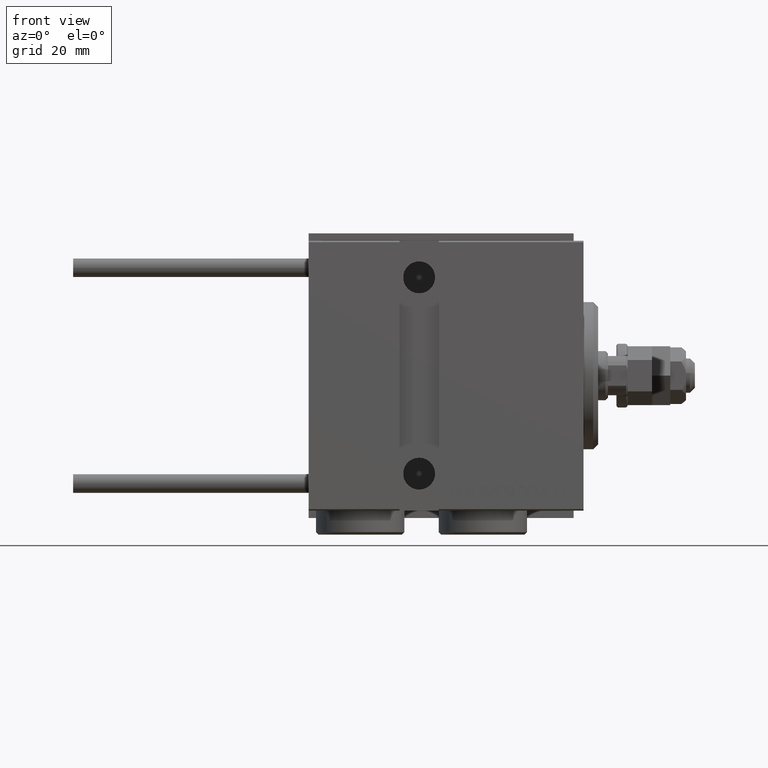
[diagram: clean part render]
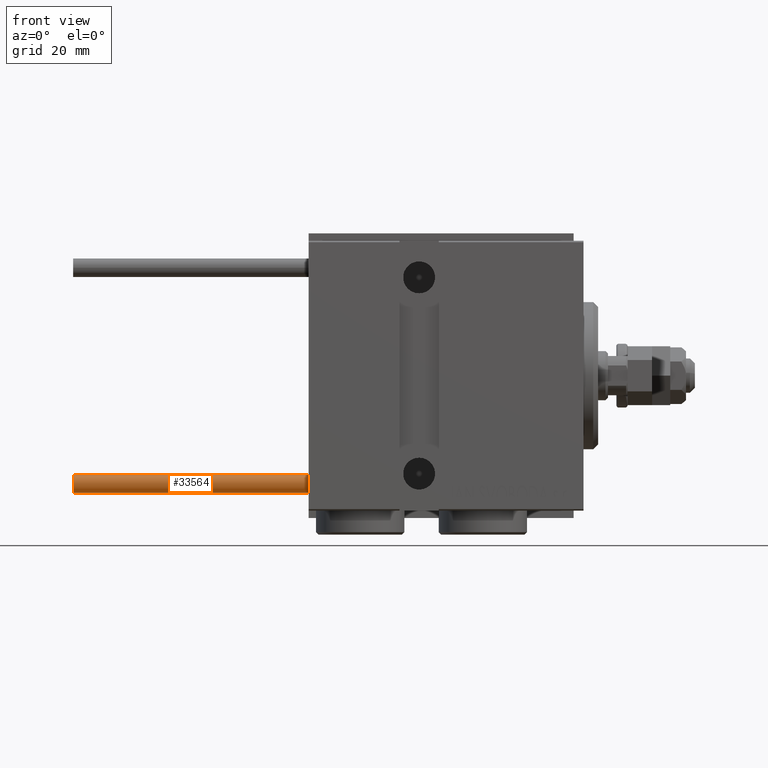
[diagram: same view with one face highlighted and labeled with its STEP entity id]
A machine part, front view. The second image highlights one B-rep face of the part: STEP entity #33564.
In plain terms, the highlighted cylindrical surface (edge-blend (fillet) strip) has radius 1.9 mm, axis along (1, -0, 0).
Its self-contained STEP definition (entity closure, byte-faithful):
#394 = VERTEX_POINT ( 'NONE', #28224 ) ;
#422 = CARTESIAN_POINT ( 'NONE',  ( -1.899999999999999467, 0.000000000000000000, 48.00000000000000000 ) ) ;
#507 = CARTESIAN_POINT ( 'NONE',  ( -1.899999999999999467, 0.000000000000000000, 48.00000000000000000 ) ) ;
#3076 = DIRECTION ( 'NONE',  ( 1.000000000000000000, 0.000000000000000000, 0.000000000000000000 ) ) ;
#6365 = ORIENTED_EDGE ( 'NONE', *, *, #14934, .F. ) ;
#6480 = VERTEX_POINT ( 'NONE', #32838 ) ;
#6722 = AXIS2_PLACEMENT_3D ( 'NONE', #50144, #10849, #3076 ) ;
#9556 = FACE_OUTER_BOUND ( 'NONE', #17243, .T. ) ;
#10849 = DIRECTION ( 'NONE',  ( 0.000000000000000000, 0.000000000000000000, 1.000000000000000000 ) ) ;
#11434 = VECTOR ( 'NONE', #40584, 1000.000000000000000 ) ;
#12470 = VERTEX_POINT ( 'NONE', #422 ) ;
#12919 = DIRECTION ( 'NONE',  ( -1.000000000000000000, 0.000000000000000000, 0.000000000000000000 ) ) ;
#13140 = AXIS2_PLACEMENT_3D ( 'NONE', #34275, #27025, #15646 ) ;
#13745 = CARTESIAN_POINT ( 'NONE',  ( 1.899999999999999467, 2.326828918379970872E-16, 48.00000000000000000 ) ) ;
#14250 = DIRECTION ( 'NONE',  ( -0.000000000000000000, -0.000000000000000000, -1.000000000000000000 ) ) ;
#14934 = EDGE_CURVE ( 'NONE', #12470, #43706, #44527, .T. ) ;
#15646 = DIRECTION ( 'NONE',  ( 1.000000000000000000, 0.000000000000000000, 0.000000000000000000 ) ) ;
#17054 = CARTESIAN_POINT ( 'NONE',  ( 0.000000000000000000, 0.000000000000000000, 48.00000000000000000 ) ) ;
#17243 = EDGE_LOOP ( 'NONE', ( #38268, #6365, #28900, #26338 ) ) ;
#19081 = EDGE_CURVE ( 'NONE', #43706, #6480, #33420, .T. ) ;
#20944 = CYLINDRICAL_SURFACE ( 'NONE', #35984, 1.899999999999999467 ) ;
#21020 = EDGE_CURVE ( 'NONE', #394, #6480, #27417, .T. ) ;
#21549 = VECTOR ( 'NONE', #14250, 1000.000000000000000 ) ;
#26338 = ORIENTED_EDGE ( 'NONE', *, *, #21020, .T. ) ;
#27025 = DIRECTION ( 'NONE',  ( 0.000000000000000000, 0.000000000000000000, 1.000000000000000000 ) ) ;
#27417 = CIRCLE ( 'NONE', #6722, 1.899999999999999467 ) ;
#28224 = CARTESIAN_POINT ( 'NONE',  ( -1.899999999999999467, 0.000000000000000000, 0.000000000000000000 ) ) ;
#28900 = ORIENTED_EDGE ( 'NONE', *, *, #46778, .T. ) ;
#28948 = LINE ( 'NONE', #507, #11434 ) ;
#32838 = CARTESIAN_POINT ( 'NONE',  ( 1.899999999999999467, 2.326828918379970872E-16, 0.000000000000000000 ) ) ;
#33420 = LINE ( 'NONE', #13745, #21549 ) ;
#33564 = ADVANCED_FACE ( 'NONE', ( #9556 ), #20944, .T. ) ;
#34275 = CARTESIAN_POINT ( 'NONE',  ( 0.000000000000000000, 0.000000000000000000, 48.00000000000000000 ) ) ;
#35984 = AXIS2_PLACEMENT_3D ( 'NONE', #17054, #41104, #12919 ) ;
#38268 = ORIENTED_EDGE ( 'NONE', *, *, #19081, .F. ) ;
#40584 = DIRECTION ( 'NONE',  ( -0.000000000000000000, -0.000000000000000000, -1.000000000000000000 ) ) ;
#41104 = DIRECTION ( 'NONE',  ( -0.000000000000000000, -0.000000000000000000, -1.000000000000000000 ) ) ;
#43706 = VERTEX_POINT ( 'NONE', #46464 ) ;
#44527 = CIRCLE ( 'NONE', #13140, 1.899999999999999467 ) ;
#46464 = CARTESIAN_POINT ( 'NONE',  ( 1.899999999999999467, 2.326828918379970872E-16, 48.00000000000000000 ) ) ;
#46778 = EDGE_CURVE ( 'NONE', #12470, #394, #28948, .T. ) ;
#50144 = CARTESIAN_POINT ( 'NONE',  ( 0.000000000000000000, 0.000000000000000000, 0.000000000000000000 ) ) ;